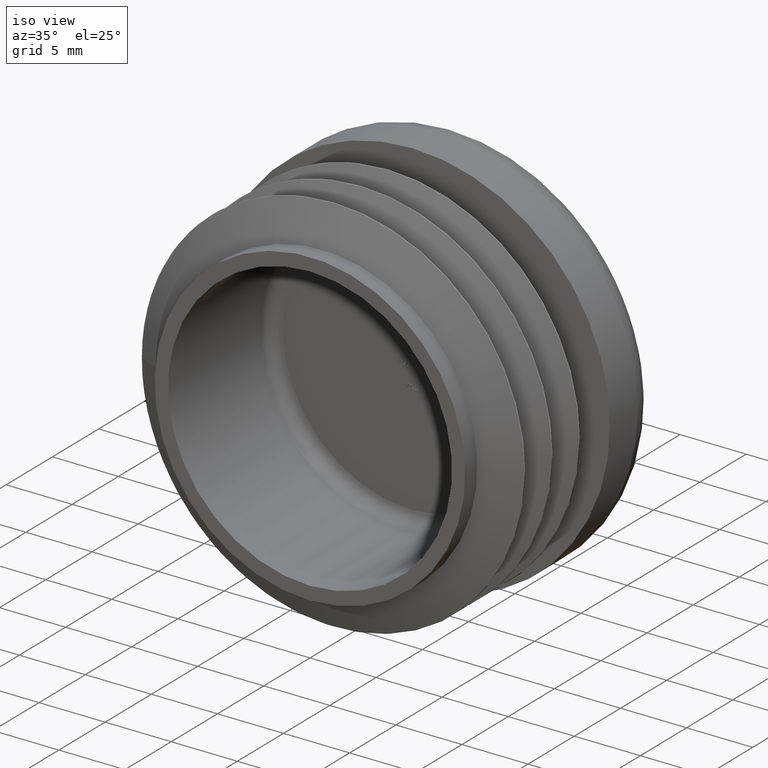
[diagram: clean part render]
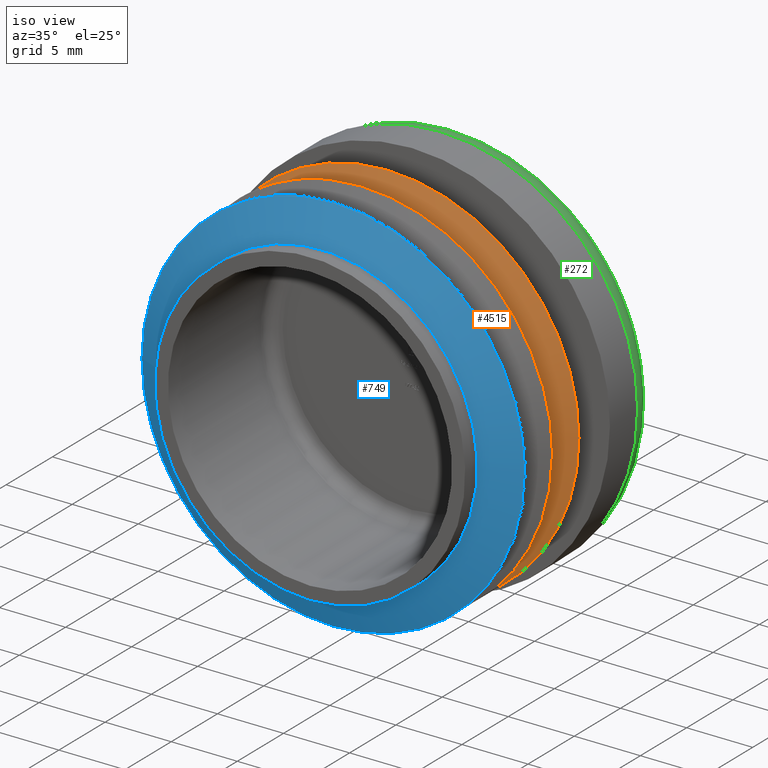
[diagram: same view with three faces highlighted in distinct colors, each labeled with its STEP entity id]
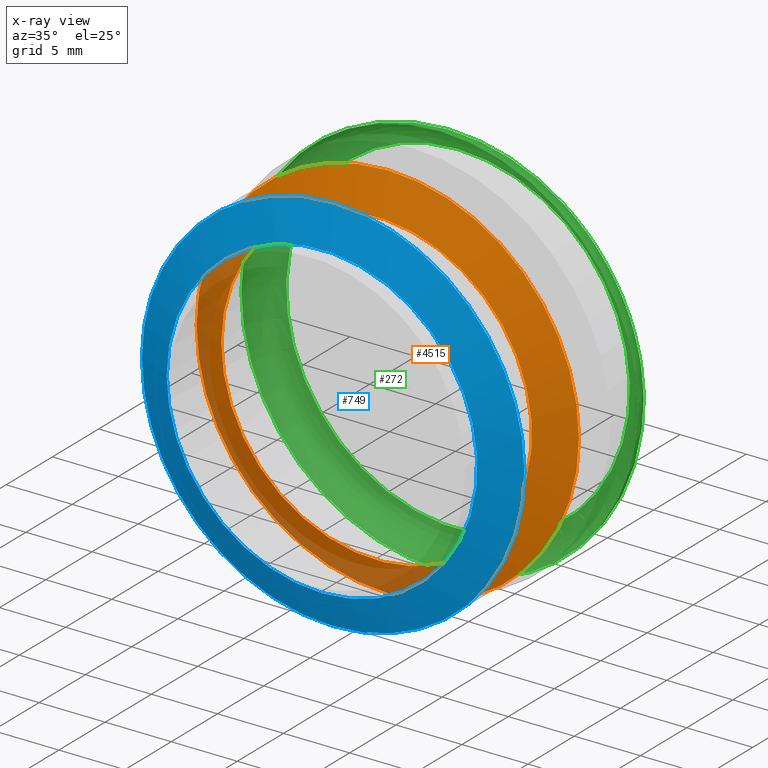
[diagram: x-ray of the same camera — body ghosted, the three highlighted faces saturated]
A machine part, iso view with three faces highlighted in distinct colors.
The next image is the same camera in x-ray (body ghosted, the three faces saturated) — at least one of them is partly hidden behind the body in this view.
Their STEP definitions:

[orange] entity #4515 — the highlighted conical surface has half-angle 66.121 deg.
#39 = EDGE_LOOP ( 'NONE', ( #970 ) ) ;
#665 = ORIENTED_EDGE ( 'NONE', *, *, #3821, .T. ) ;
#882 = CARTESIAN_POINT ( 'NONE',  ( 14.47024071558972302, 8.404280054326505933, 0.000000000000000000 ) ) ;
#970 = ORIENTED_EDGE ( 'NONE', *, *, #7871, .T. ) ;
#1125 = CARTESIAN_POINT ( 'NONE',  ( -7.541599691901335917E-14, 7.200000000000158273, 0.000000000000000000 ) ) ;
#1246 = DIRECTION ( 'NONE',  ( -1.000000000000000000, -1.048215887611517492E-14, 0.000000000000000000 ) ) ;
#2002 = DIRECTION ( 'NONE',  ( -1.047444401652940164E-14, 1.000000000000000000, 0.000000000000000000 ) ) ;
#2214 = CONICAL_SURFACE ( 'NONE', #9071, 11.75000000000007461, 1.154020576637835083 ) ;
#2606 = DIRECTION ( 'NONE',  ( 1.047444401652940164E-14, -1.000000000000000000, -0.000000000000000000 ) ) ;
#2950 = CARTESIAN_POINT ( 'NONE',  ( -7.541599691901300576E-14, 7.200000000000125411, 0.000000000000000000 ) ) ;
#2966 = VERTEX_POINT ( 'NONE', #882 ) ;
#3173 = AXIS2_PLACEMENT_3D ( 'NONE', #4303, #2606, #3430 ) ;
#3430 = DIRECTION ( 'NONE',  ( 1.000000000000000000, 1.042974649671061979E-14, 0.000000000000000000 ) ) ;
#3821 = EDGE_CURVE ( 'NONE', #3901, #3901, #7568, .T. ) ;
#3901 = VERTEX_POINT ( 'NONE', #11180 ) ;
#4303 = CARTESIAN_POINT ( 'NONE',  ( -8.803016092827607943E-14, 8.404280054326354943, 0.000000000000000000 ) ) ;
#4515 = ADVANCED_FACE ( 'NONE', ( #11124, #8429 ), #2214, .T. ) ;
#5531 = DIRECTION ( 'NONE',  ( -1.047444401652940164E-14, 1.000000000000000000, 0.000000000000000000 ) ) ;
#5982 = AXIS2_PLACEMENT_3D ( 'NONE', #2950, #5531, #1246 ) ;
#7568 = CIRCLE ( 'NONE', #5982, 11.75000000000000000 ) ;
#7871 = EDGE_CURVE ( 'NONE', #2966, #2966, #9320, .T. ) ;
#8054 = EDGE_LOOP ( 'NONE', ( #665 ) ) ;
#8429 = FACE_BOUND ( 'NONE', #8054, .T. ) ;
#9071 = AXIS2_PLACEMENT_3D ( 'NONE', #1125, #2002, #9812 ) ;
#9320 = CIRCLE ( 'NONE', #3173, 14.47024071558981184 ) ;
#9812 = DIRECTION ( 'NONE',  ( -1.000000000000000000, -1.048215887611510865E-14, 0.000000000000000000 ) ) ;
#11124 = FACE_OUTER_BOUND ( 'NONE', #39, .T. ) ;
#11180 = CARTESIAN_POINT ( 'NONE',  ( -11.75000000000007461, 7.200000000000002842, 0.000000000000000000 ) ) ;

[blue] entity #749 — the highlighted conical surface has half-angle 66.121 deg.
#314 = EDGE_LOOP ( 'NONE', ( #4851 ) ) ;
#729 = DIRECTION ( 'NONE',  ( 1.000000000000000000, 1.045971703262070877E-14, 0.000000000000000000 ) ) ;
#749 = ADVANCED_FACE ( 'NONE', ( #8707, #7228 ), #10347, .T. ) ;
#2419 = ORIENTED_EDGE ( 'NONE', *, *, #4048, .T. ) ;
#2457 = DIRECTION ( 'NONE',  ( -1.047444401652940164E-14, 1.000000000000000000, 0.000000000000000000 ) ) ;
#3344 = CARTESIAN_POINT ( 'NONE',  ( 14.47024071558978520, 2.504280054326223581, 0.000000000000000000 ) ) ;
#3652 = CIRCLE ( 'NONE', #9089, 11.75000000000000000 ) ;
#4048 = EDGE_CURVE ( 'NONE', #8201, #8201, #6891, .T. ) ;
#4851 = ORIENTED_EDGE ( 'NONE', *, *, #9120, .T. ) ;
#5507 = DIRECTION ( 'NONE',  ( -1.047444401652940164E-14, 1.000000000000000000, 0.000000000000000000 ) ) ;
#5870 = DIRECTION ( 'NONE',  ( 1.047444401652940164E-14, -1.000000000000000000, -0.000000000000000000 ) ) ;
#6891 = CIRCLE ( 'NONE', #9665, 14.47024071558981184 ) ;
#7228 = FACE_BOUND ( 'NONE', #314, .T. ) ;
#7741 = CARTESIAN_POINT ( 'NONE',  ( -11.75000000000001421, 1.299999999999719824, 0.000000000000000000 ) ) ;
#8004 = EDGE_LOOP ( 'NONE', ( #2419 ) ) ;
#8025 = CARTESIAN_POINT ( 'NONE',  ( -1.361677722148657768E-14, 1.299999999999843059, 0.000000000000000000 ) ) ;
#8201 = VERTEX_POINT ( 'NONE', #3344 ) ;
#8455 = CARTESIAN_POINT ( 'NONE',  ( -2.623094123074964977E-14, 2.504280054326072147, 0.000000000000000000 ) ) ;
#8707 = FACE_OUTER_BOUND ( 'NONE', #8004, .T. ) ;
#9089 = AXIS2_PLACEMENT_3D ( 'NONE', #8025, #5507, #10651 ) ;
#9120 = EDGE_CURVE ( 'NONE', #9976, #9976, #3652, .T. ) ;
#9665 = AXIS2_PLACEMENT_3D ( 'NONE', #8455, #5870, #729 ) ;
#9976 = VERTEX_POINT ( 'NONE', #7741 ) ;
#10016 = AXIS2_PLACEMENT_3D ( 'NONE', #10160, #2457, #11126 ) ;
#10160 = CARTESIAN_POINT ( 'NONE',  ( -1.361677722148693109E-14, 1.299999999999876810, 0.000000000000000000 ) ) ;
#10347 = CONICAL_SURFACE ( 'NONE', #10016, 11.75000000000007638, 1.154020576637835083 ) ;
#10651 = DIRECTION ( 'NONE',  ( -1.000000000000000000, -1.048215887611517492E-14, 0.000000000000000000 ) ) ;
#11126 = DIRECTION ( 'NONE',  ( -1.000000000000000000, -1.048215887611510708E-14, 0.000000000000000000 ) ) ;

[green] entity #272 — the highlighted toroidal blend (fillet) surface has major radius 13 mm and minor (blend) radius 2 mm.
#272 = ADVANCED_FACE ( 'NONE', ( #1041, #3083 ), #768, .T. ) ;
#768 = TOROIDAL_SURFACE ( 'NONE', #4018, 12.99999999999999822, 2.000000000000000000 ) ;
#1041 = FACE_OUTER_BOUND ( 'NONE', #10142, .T. ) ;
#1072 = DIRECTION ( 'NONE',  ( 0.000000000000000000, 1.000000000000000000, 0.000000000000000000 ) ) ;
#1391 = CIRCLE ( 'NONE', #9458, 12.99999999999999822 ) ;
#1669 = CARTESIAN_POINT ( 'NONE',  ( 0.000000000000000000, 16.00000000000000000, 12.99999999999999822 ) ) ;
#1893 = DIRECTION ( 'NONE',  ( 0.000000000000000000, 1.000000000000000000, 0.000000000000000000 ) ) ;
#2015 = VERTEX_POINT ( 'NONE', #4359 ) ;
#2787 = CARTESIAN_POINT ( 'NONE',  ( 0.000000000000000000, 14.00000000000000000, 0.000000000000000000 ) ) ;
#3083 = FACE_OUTER_BOUND ( 'NONE', #10169, .T. ) ;
#3611 = AXIS2_PLACEMENT_3D ( 'NONE', #5020, #6648, #6800 ) ;
#4018 = AXIS2_PLACEMENT_3D ( 'NONE', #2787, #1072, #6248 ) ;
#4359 = CARTESIAN_POINT ( 'NONE',  ( 0.000000000000000000, 14.00000000000000000, 14.99999999999999822 ) ) ;
#5020 = CARTESIAN_POINT ( 'NONE',  ( 0.000000000000000000, 14.00000000000000000, 0.000000000000000000 ) ) ;
#6248 = DIRECTION ( 'NONE',  ( 0.000000000000000000, 0.000000000000000000, 1.000000000000000000 ) ) ;
#6648 = DIRECTION ( 'NONE',  ( -0.000000000000000000, -1.000000000000000000, -0.000000000000000000 ) ) ;
#6800 = DIRECTION ( 'NONE',  ( 0.000000000000000000, 0.000000000000000000, 1.000000000000000000 ) ) ;
#7860 = CARTESIAN_POINT ( 'NONE',  ( 0.000000000000000000, 16.00000000000000000, 0.000000000000000000 ) ) ;
#8124 = ORIENTED_EDGE ( 'NONE', *, *, #10836, .F. ) ;
#8602 = VERTEX_POINT ( 'NONE', #1669 ) ;
#8697 = DIRECTION ( 'NONE',  ( 0.000000000000000000, 0.000000000000000000, 1.000000000000000000 ) ) ;
#9458 = AXIS2_PLACEMENT_3D ( 'NONE', #7860, #1893, #8697 ) ;
#9794 = EDGE_CURVE ( 'NONE', #2015, #2015, #11029, .T. ) ;
#10142 = EDGE_LOOP ( 'NONE', ( #8124 ) ) ;
#10169 = EDGE_LOOP ( 'NONE', ( #10468 ) ) ;
#10468 = ORIENTED_EDGE ( 'NONE', *, *, #9794, .F. ) ;
#10836 = EDGE_CURVE ( 'NONE', #8602, #8602, #1391, .T. ) ;
#11029 = CIRCLE ( 'NONE', #3611, 14.99999999999999822 ) ;